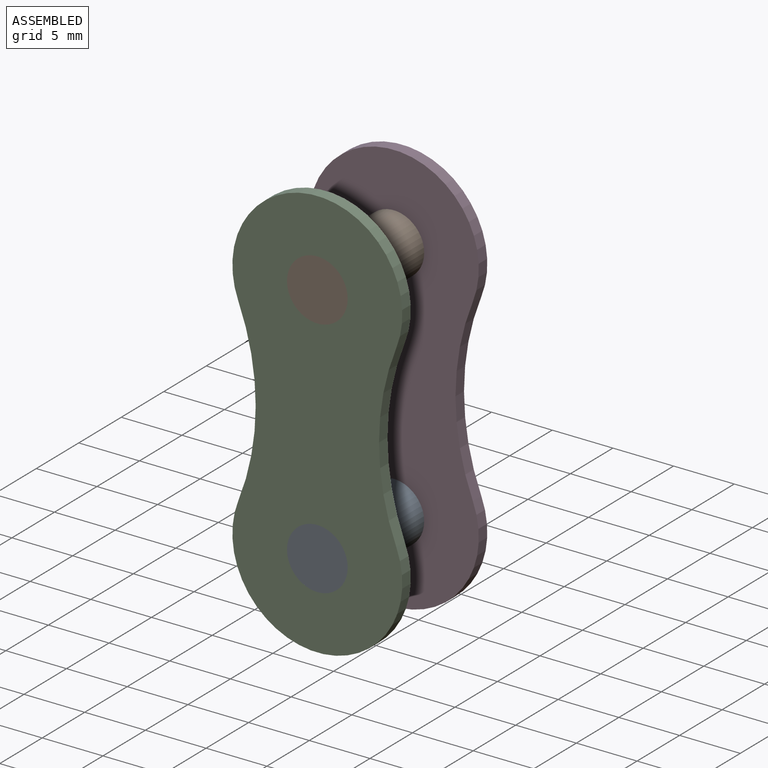
[diagram: assembled view]
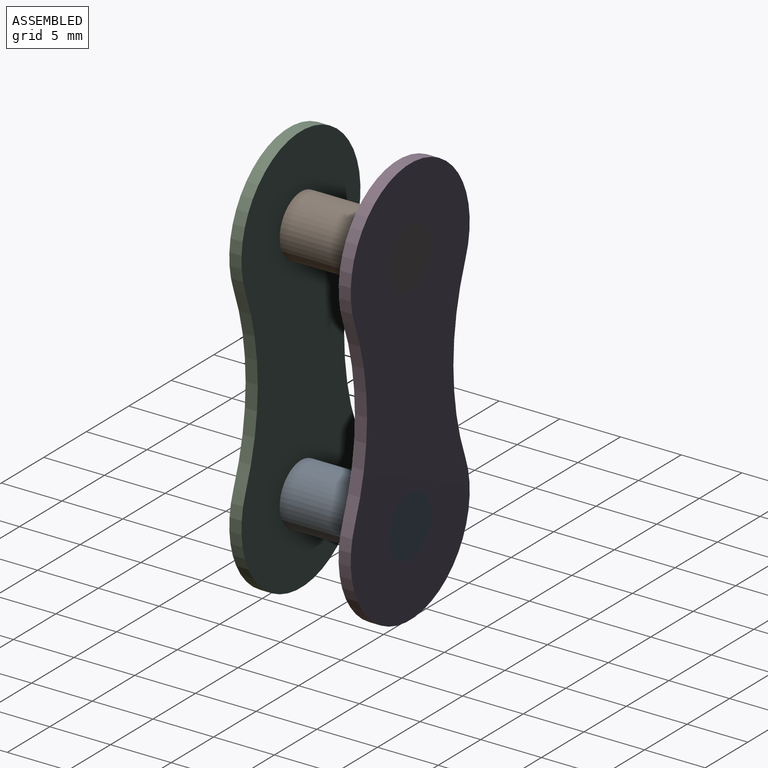
[diagram: assembled view, second angle]
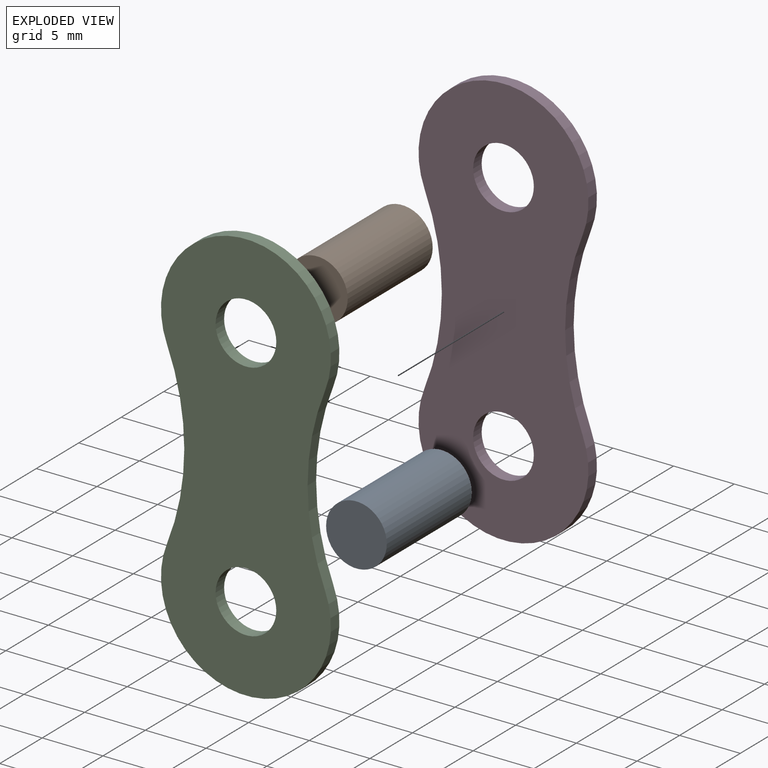
[diagram: exploded view]
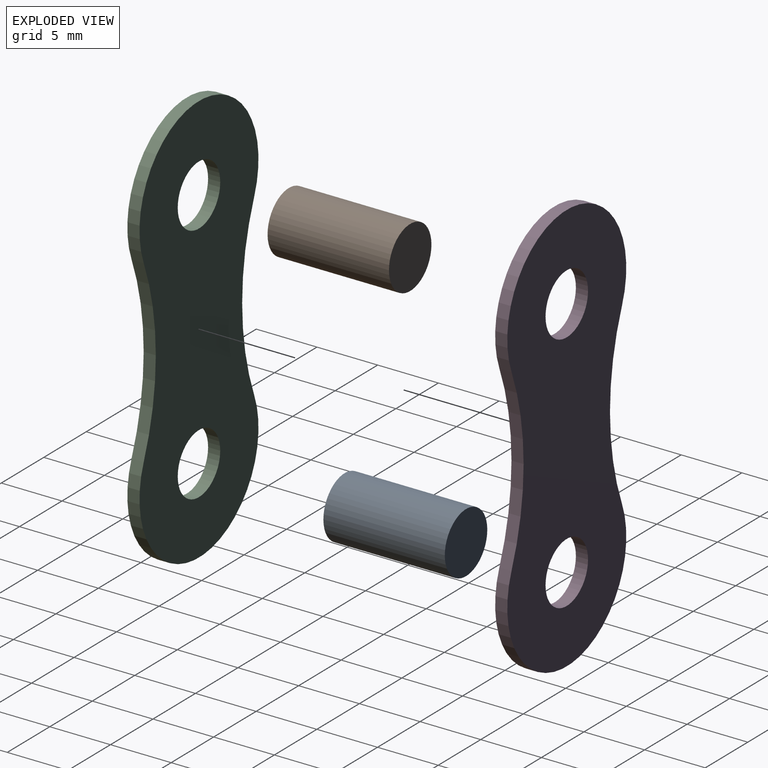
[diagram: exploded view, second angle]
ASSEMBLY  parts=4 mates=3
PART A: 3 faces, bbox 5x10x5 mm
  f0: cylinder r=2.5mm len=10mm, axis (0,1,0), area 157.1mm2, adj f1,f2
  f1: plane 5x5mm, normal (0,-1,0), area 19.6mm2, adj f0
  f2: plane 5x5mm, normal (0,1,0), area 19.6mm2, adj f0
PART B: same geometry as A
PART C: 8 faces, bbox 14x1x34 mm
  f0: cylinder r=20mm len=14.82mm, axis (0,1,0), area 15.2mm2, adj f1,f5,f6,f7
  f1: cylinder r=7mm len=14mm, axis (0,1,0), area 27.3mm2, adj f0,f2,f6,f7
  f2: cylinder r=20mm len=14.82mm, axis (0,1,0), area 15.2mm2, adj f1,f5,f6,f7
  f3: cylinder r=2.5mm len=5mm, axis (0,1,0), area 15.7mm2, adj f6,f7
  f4: cylinder r=2.5mm len=5mm, axis (0,1,0), area 15.7mm2, adj f6,f7
  f5: cylinder r=7mm len=14mm, axis (0,1,0), area 27.3mm2, adj f0,f2,f6,f7
  f6: plane 34x14mm, normal (0,-1,0), area 349.9mm2, adj f0,f1,f2,f3,f4,f5
  f7: plane 34x14mm, normal (0,1,0), area 349.9mm2, adj f0,f1,f2,f3,f4,f5
PART D: same geometry as C
PLACE A t=(-1.93,15.84,-22.52)mm
PLACE B t=(-1.93,15.84,-2.52)mm
PLACE C t=(-1.93,6.84,-2.52)mm
PLACE D t=(-1.93,15.84,-2.52)mm
MATE fastened B.f0 <-> D.f3  axis (0,1,0) through (-1.93,15.84,-2.52)mm
MATE fastened B.f0 <-> C.f3  axis (0,-1,0) through (-1.93,5.84,-2.52)mm
MATE fastened A.f0 <-> D.f1  axis (0,1,0) through (-1.93,15.84,-22.52)mm
